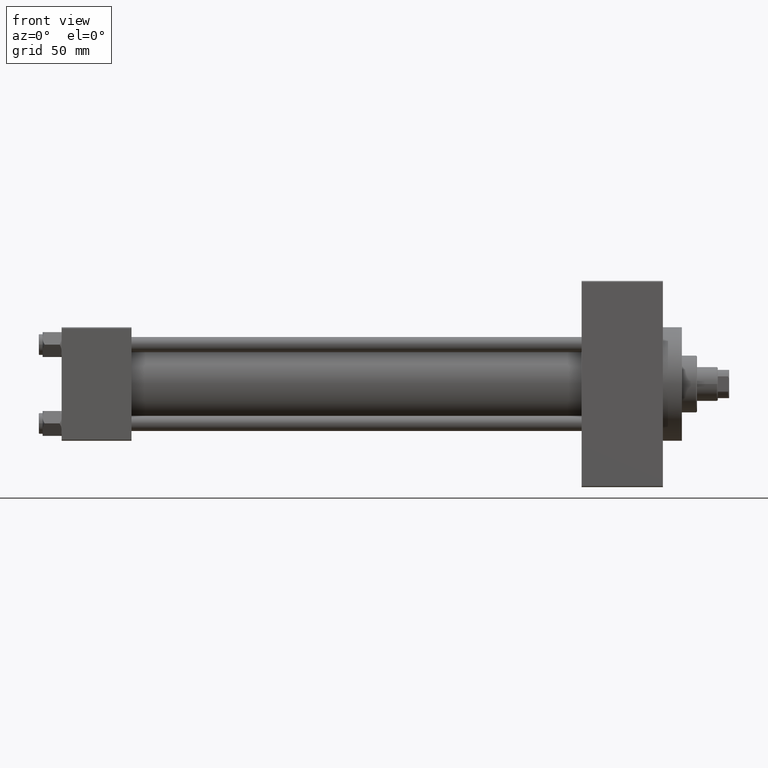
[diagram: clean part render]
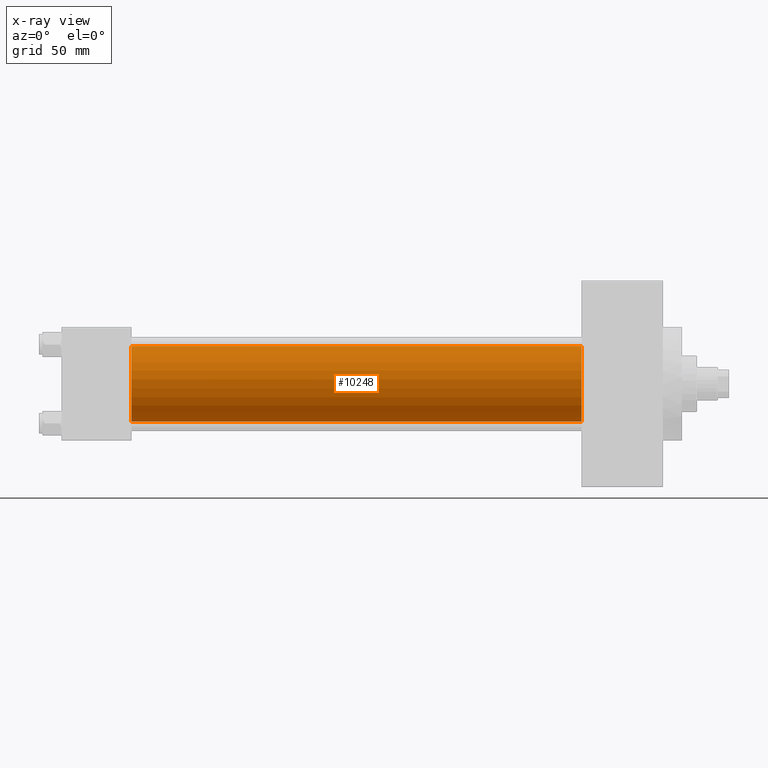
[diagram: x-ray — body ghosted, one internal face saturated and labeled with its STEP entity id]
A machine part, front view, then the same camera in x-ray: the body is ghosted and one INTERNAL B-rep face — a face not visible from any outside direction — is saturated and labeled: STEP entity #10248.
In plain terms, the highlighted cylindrical surface (partial cylindrical patch) has radius 20 mm, axis along (-1, -0, -0).
Its self-contained STEP definition (entity closure, byte-faithful):
#385 = ORIENTED_EDGE ( 'NONE', *, *, #1737, .F. ) ;
#1737 = EDGE_CURVE ( 'NONE', #21157, #29568, #27652, .T. ) ;
#5307 = DIRECTION ( 'NONE',  ( 0.000000000000000000, 0.000000000000000000, 1.000000000000000000 ) ) ;
#5970 = DIRECTION ( 'NONE',  ( -1.000000000000000000, -0.000000000000000000, -0.000000000000000000 ) ) ;
#6050 = AXIS2_PLACEMENT_3D ( 'NONE', #26734, #34736, #37516 ) ;
#6715 = VERTEX_POINT ( 'NONE', #19560 ) ;
#9076 = CYLINDRICAL_SURFACE ( 'NONE', #21423, 20.00000000000000000 ) ;
#9324 = CARTESIAN_POINT ( 'NONE',  ( 274.9999999999999432, -2.602085213965210642E-15, 0.000000000000000000 ) ) ;
#9495 = CARTESIAN_POINT ( 'NONE',  ( 274.9999999999999432, -1.527916156705042519E-16, -20.00000000000000000 ) ) ;
#10248 = ADVANCED_FACE ( 'NONE', ( #25087 ), #9076, .F. ) ;
#12707 = DIRECTION ( 'NONE',  ( 1.000000000000000000, 0.000000000000000000, 0.000000000000000000 ) ) ;
#15457 = ORIENTED_EDGE ( 'NONE', *, *, #42404, .T. ) ;
#16793 = CIRCLE ( 'NONE', #44777, 20.00000000000000000 ) ;
#18361 = LINE ( 'NONE', #21368, #21837 ) ;
#18383 = ORIENTED_EDGE ( 'NONE', *, *, #36654, .T. ) ;
#19560 = CARTESIAN_POINT ( 'NONE',  ( 274.9999999999999432, -2.602085213965210642E-15, 20.00000000000000000 ) ) ;
#21157 = VERTEX_POINT ( 'NONE', #39557 ) ;
#21368 = CARTESIAN_POINT ( 'NONE',  ( 274.9999999999999432, -2.602085213965210642E-15, 20.00000000000000000 ) ) ;
#21423 = AXIS2_PLACEMENT_3D ( 'NONE', #9324, #28861, #5307 ) ;
#21837 = VECTOR ( 'NONE', #37372, 1000.000000000000000 ) ;
#22755 = EDGE_CURVE ( 'NONE', #6715, #21157, #18361, .T. ) ;
#23470 = DIRECTION ( 'NONE',  ( 0.000000000000000000, 0.000000000000000000, -1.000000000000000000 ) ) ;
#23974 = EDGE_LOOP ( 'NONE', ( #15457, #18383, #385, #46746 ) ) ;
#25087 = FACE_OUTER_BOUND ( 'NONE', #23974, .T. ) ;
#26734 = CARTESIAN_POINT ( 'NONE',  ( 37.00000000000000000, -2.602085213965210642E-15, 0.000000000000000000 ) ) ;
#27483 = CARTESIAN_POINT ( 'NONE',  ( 274.9999999999999432, -2.602085213965210642E-15, 0.000000000000000000 ) ) ;
#27652 = CIRCLE ( 'NONE', #6050, 20.00000000000000000 ) ;
#28861 = DIRECTION ( 'NONE',  ( -1.000000000000000000, -0.000000000000000000, -0.000000000000000000 ) ) ;
#29021 = LINE ( 'NONE', #9495, #43772 ) ;
#29568 = VERTEX_POINT ( 'NONE', #42593 ) ;
#34736 = DIRECTION ( 'NONE',  ( 1.000000000000000000, 0.000000000000000000, 0.000000000000000000 ) ) ;
#36654 = EDGE_CURVE ( 'NONE', #43900, #29568, #29021, .T. ) ;
#37372 = DIRECTION ( 'NONE',  ( -1.000000000000000000, -0.000000000000000000, -0.000000000000000000 ) ) ;
#37516 = DIRECTION ( 'NONE',  ( 0.000000000000000000, 0.000000000000000000, -1.000000000000000000 ) ) ;
#39126 = CARTESIAN_POINT ( 'NONE',  ( 274.9999999999999432, -1.527916156705042519E-16, -20.00000000000000000 ) ) ;
#39557 = CARTESIAN_POINT ( 'NONE',  ( 37.00000000000000000, -2.602085213965210642E-15, 20.00000000000000000 ) ) ;
#42404 = EDGE_CURVE ( 'NONE', #6715, #43900, #16793, .T. ) ;
#42593 = CARTESIAN_POINT ( 'NONE',  ( 37.00000000000000000, -1.527916156705042519E-16, -20.00000000000000000 ) ) ;
#43772 = VECTOR ( 'NONE', #5970, 1000.000000000000000 ) ;
#43900 = VERTEX_POINT ( 'NONE', #39126 ) ;
#44777 = AXIS2_PLACEMENT_3D ( 'NONE', #27483, #12707, #23470 ) ;
#46746 = ORIENTED_EDGE ( 'NONE', *, *, #22755, .F. ) ;